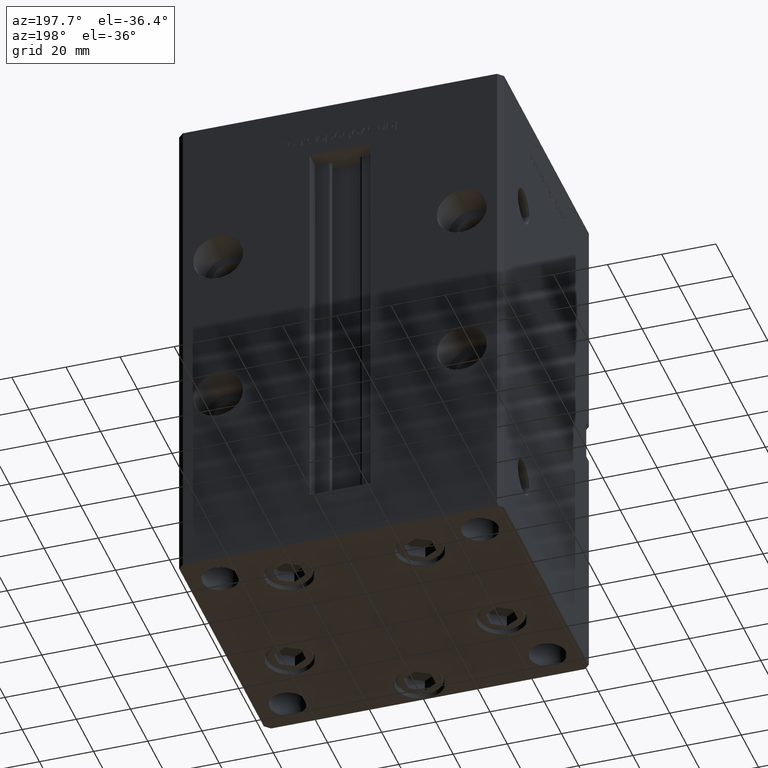
[diagram: clean part render]
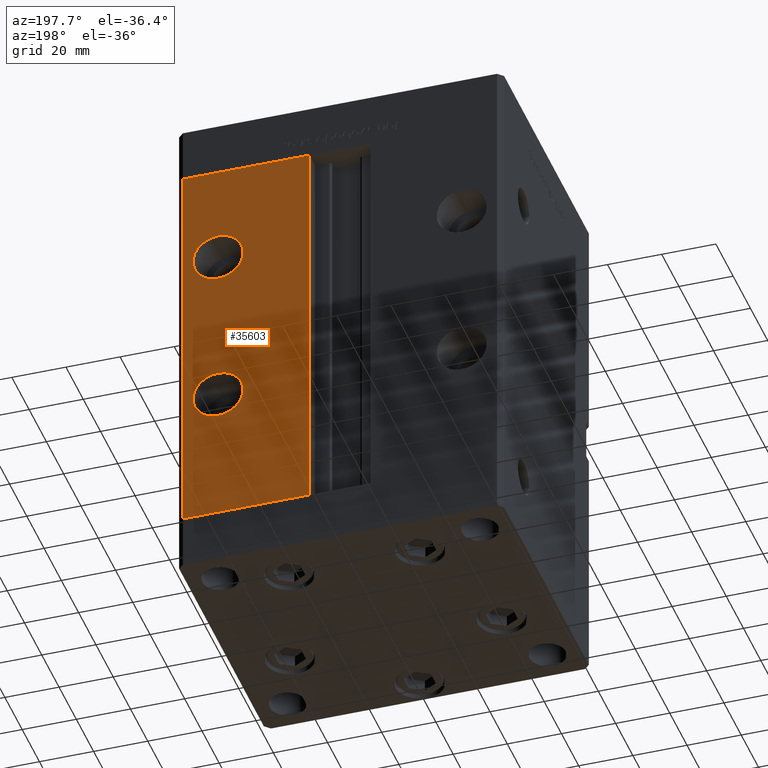
[diagram: same view with one face highlighted and labeled with its STEP entity id]
A machine part, auxiliary view. The second image highlights one B-rep face of the part: STEP entity #35603.
In plain terms, the highlighted planar face has unit normal (0, -1, 0).
Its self-contained STEP definition (entity closure, byte-faithful):
#754 = CARTESIAN_POINT ( 'NONE',  ( 11.24999999999999822, 51.00000000000000711, 0.000000000000000000 ) ) ;
#1351 = DIRECTION ( 'NONE',  ( 0.000000000000000000, 1.000000000000000000, -0.000000000000000000 ) ) ;
#1418 = ORIENTED_EDGE ( 'NONE', *, *, #37922, .F. ) ;
#1690 = CARTESIAN_POINT ( 'NONE',  ( 11.24999999999999112, 51.00000000000000711, 148.5000000000000000 ) ) ;
#2906 = VECTOR ( 'NONE', #43290, 1000.000000000000000 ) ;
#5445 = DIRECTION ( 'NONE',  ( 0.000000000000000000, 0.000000000000000000, 1.000000000000000000 ) ) ;
#5762 = DIRECTION ( 'NONE',  ( 0.000000000000000000, -0.000000000000000000, -1.000000000000000000 ) ) ;
#6015 = DIRECTION ( 'NONE',  ( 0.000000000000000000, 1.000000000000000000, -0.000000000000000000 ) ) ;
#7330 = AXIS2_PLACEMENT_3D ( 'NONE', #14613, #6015, #10060 ) ;
#8268 = VERTEX_POINT ( 'NONE', #1690 ) ;
#9487 = ORIENTED_EDGE ( 'NONE', *, *, #47646, .F. ) ;
#9747 = CIRCLE ( 'NONE', #27766, 9.249999999999994671 ) ;
#9827 = ORIENTED_EDGE ( 'NONE', *, *, #22589, .T. ) ;
#9922 = CIRCLE ( 'NONE', #40803, 9.249999999999994671 ) ;
#10060 = DIRECTION ( 'NONE',  ( 0.000000000000000000, 0.000000000000000000, -1.000000000000000000 ) ) ;
#10983 = EDGE_LOOP ( 'NONE', ( #9487, #42564 ) ) ;
#11345 = EDGE_CURVE ( 'NONE', #20373, #39853, #27470, .T. ) ;
#12849 = EDGE_CURVE ( 'NONE', #8268, #36093, #25707, .T. ) ;
#13457 = VECTOR ( 'NONE', #17783, 1000.000000000000000 ) ;
#14354 = VECTOR ( 'NONE', #48585, 1000.000000000000000 ) ;
#14413 = ORIENTED_EDGE ( 'NONE', *, *, #12849, .T. ) ;
#14613 = CARTESIAN_POINT ( 'NONE',  ( 45.00000000000000000, 51.00000000000000711, 51.50000000000000000 ) ) ;
#14756 = CARTESIAN_POINT ( 'NONE',  ( 45.00000000000000000, 51.00000000000000711, 120.7500000000000000 ) ) ;
#15253 = EDGE_LOOP ( 'NONE', ( #49523, #1418 ) ) ;
#16490 = EDGE_LOOP ( 'NONE', ( #51346, #34789, #14413, #9827 ) ) ;
#16608 = AXIS2_PLACEMENT_3D ( 'NONE', #49937, #1351, #50200 ) ;
#16923 = CARTESIAN_POINT ( 'NONE',  ( 45.00000000000000000, 51.00000000000000711, 111.5000000000000000 ) ) ;
#17783 = DIRECTION ( 'NONE',  ( -0.000000000000000000, -0.000000000000000000, 1.000000000000000000 ) ) ;
#18300 = CARTESIAN_POINT ( 'NONE',  ( 45.00000000000000000, 51.00000000000000711, 42.24999999999999289 ) ) ;
#20373 = VERTEX_POINT ( 'NONE', #40594 ) ;
#21876 = FACE_OUTER_BOUND ( 'NONE', #16490, .T. ) ;
#22589 = EDGE_CURVE ( 'NONE', #36093, #20373, #31962, .T. ) ;
#22621 = CIRCLE ( 'NONE', #16608, 9.250000000000001776 ) ;
#25112 = AXIS2_PLACEMENT_3D ( 'NONE', #33959, #25116, #5762 ) ;
#25116 = DIRECTION ( 'NONE',  ( 0.000000000000000000, -1.000000000000000000, 0.000000000000000000 ) ) ;
#25707 = LINE ( 'NONE', #29740, #38062 ) ;
#25747 = VERTEX_POINT ( 'NONE', #14756 ) ;
#26093 = CARTESIAN_POINT ( 'NONE',  ( 11.24999999999999822, 51.00000000000000711, 0.000000000000000000 ) ) ;
#27470 = LINE ( 'NONE', #43569, #2906 ) ;
#27766 = AXIS2_PLACEMENT_3D ( 'NONE', #33635, #34170, #5445 ) ;
#29406 = PLANE ( 'NONE',  #25112 ) ;
#29740 = CARTESIAN_POINT ( 'NONE',  ( -11.24999999999999822, 51.00000000000000711, 148.5000000000000000 ) ) ;
#31962 = LINE ( 'NONE', #52880, #14354 ) ;
#32204 = CIRCLE ( 'NONE', #7330, 9.250000000000001776 ) ;
#32320 = CARTESIAN_POINT ( 'NONE',  ( 45.00000000000000000, 51.00000000000000711, 102.2500000000000142 ) ) ;
#32561 = CARTESIAN_POINT ( 'NONE',  ( 57.99999999999999289, 51.00000000000000711, 148.5000000000000000 ) ) ;
#33298 = DIRECTION ( 'NONE',  ( 0.000000000000000000, 1.000000000000000000, 0.000000000000000000 ) ) ;
#33635 = CARTESIAN_POINT ( 'NONE',  ( 45.00000000000000000, 51.00000000000000711, 111.5000000000000000 ) ) ;
#33959 = CARTESIAN_POINT ( 'NONE',  ( -11.24999999999999822, 51.00000000000000711, 148.5000000000000000 ) ) ;
#34170 = DIRECTION ( 'NONE',  ( 0.000000000000000000, 1.000000000000000000, 0.000000000000000000 ) ) ;
#34789 = ORIENTED_EDGE ( 'NONE', *, *, #51262, .T. ) ;
#35316 = CARTESIAN_POINT ( 'NONE',  ( 45.00000000000000000, 51.00000000000000711, 60.75000000000000000 ) ) ;
#35603 = ADVANCED_FACE ( 'NONE', ( #37454, #50329, #21876 ), #29406, .F. ) ;
#36093 = VERTEX_POINT ( 'NONE', #32561 ) ;
#36778 = DIRECTION ( 'NONE',  ( 0.000000000000000000, 0.000000000000000000, 1.000000000000000000 ) ) ;
#37454 = FACE_BOUND ( 'NONE', #15253, .T. ) ;
#37615 = EDGE_CURVE ( 'NONE', #43078, #25747, #9747, .T. ) ;
#37922 = EDGE_CURVE ( 'NONE', #41127, #46729, #22621, .T. ) ;
#38062 = VECTOR ( 'NONE', #50393, 1000.000000000000000 ) ;
#39853 = VERTEX_POINT ( 'NONE', #754 ) ;
#40594 = CARTESIAN_POINT ( 'NONE',  ( 57.99999999999999289, 51.00000000000000711, 0.000000000000000000 ) ) ;
#40803 = AXIS2_PLACEMENT_3D ( 'NONE', #16923, #33298, #36778 ) ;
#41127 = VERTEX_POINT ( 'NONE', #18300 ) ;
#42183 = LINE ( 'NONE', #26093, #13457 ) ;
#42564 = ORIENTED_EDGE ( 'NONE', *, *, #37615, .F. ) ;
#43009 = EDGE_CURVE ( 'NONE', #46729, #41127, #32204, .T. ) ;
#43078 = VERTEX_POINT ( 'NONE', #32320 ) ;
#43290 = DIRECTION ( 'NONE',  ( -1.000000000000000000, 0.000000000000000000, 0.000000000000000000 ) ) ;
#43569 = CARTESIAN_POINT ( 'NONE',  ( -11.24999999999999822, 51.00000000000000711, 0.000000000000000000 ) ) ;
#46729 = VERTEX_POINT ( 'NONE', #35316 ) ;
#47646 = EDGE_CURVE ( 'NONE', #25747, #43078, #9922, .T. ) ;
#48585 = DIRECTION ( 'NONE',  ( -0.000000000000000000, -0.000000000000000000, -1.000000000000000000 ) ) ;
#49523 = ORIENTED_EDGE ( 'NONE', *, *, #43009, .F. ) ;
#49937 = CARTESIAN_POINT ( 'NONE',  ( 45.00000000000000000, 51.00000000000000711, 51.50000000000000000 ) ) ;
#50200 = DIRECTION ( 'NONE',  ( 0.000000000000000000, 0.000000000000000000, -1.000000000000000000 ) ) ;
#50329 = FACE_BOUND ( 'NONE', #10983, .T. ) ;
#50393 = DIRECTION ( 'NONE',  ( 1.000000000000000000, 0.000000000000000000, 0.000000000000000000 ) ) ;
#51262 = EDGE_CURVE ( 'NONE', #39853, #8268, #42183, .T. ) ;
#51346 = ORIENTED_EDGE ( 'NONE', *, *, #11345, .T. ) ;
#52880 = CARTESIAN_POINT ( 'NONE',  ( 57.99999999999999289, 51.00000000000000711, 148.5000000000000000 ) ) ;